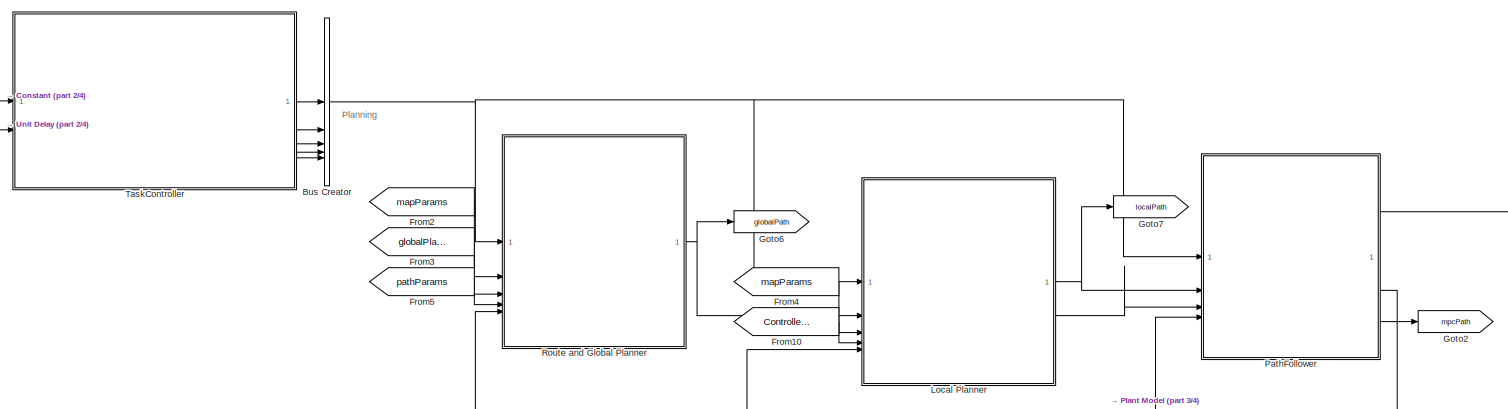
[diagram: root canvas - part 1/4, full width, top band]
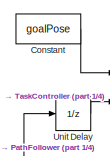
[diagram: root canvas - part 2/4, top left region]
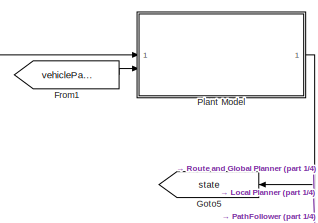
[diagram: root canvas - part 3/4, middle right region]
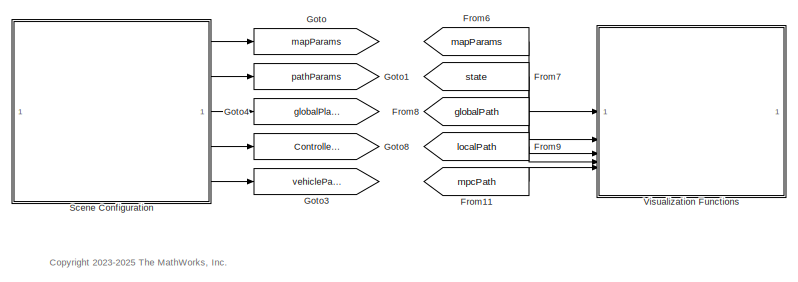
[diagram: root canvas - part 4/4, bottom center region]
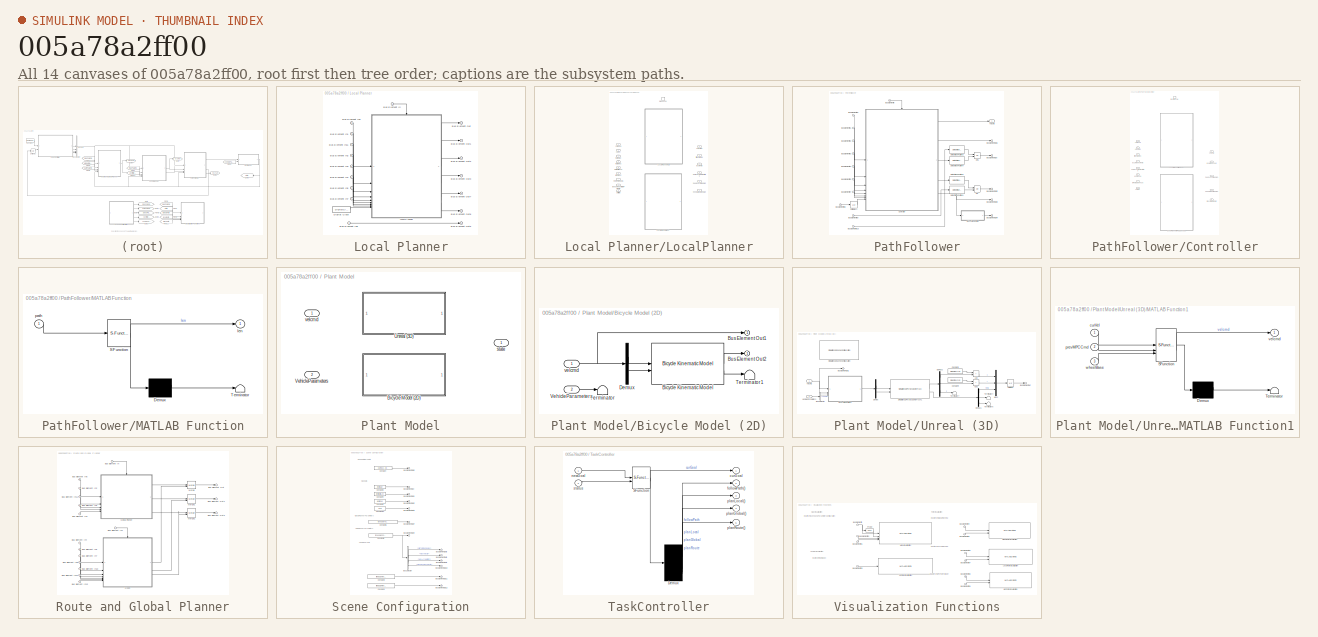
[diagram: thumbnail index - all 14 canvases of the model, root first then tree order]
MODEL slx_005a78a2ff00
KIND model
CONFIG AbsTol = auto
CONFIG EnableMultiTasking = off
CONFIG FixedStep = auto
CONFIG MaxStep = auto
CONFIG MinStep = auto
CONFIG RelTol = 1e-3
CONFIG SampleTimeConstraint = Unconstrained
CONFIG SolverName = VariableStepAuto
CONFIG StartFcn = clf\nrng(1,"twister");\n
CONFIG StartTime = 0.0
CONFIG StopTime = inf
BLOCK [BusCreator] Bus Creator
  DisplayOption = bar
  InheritFromInputs = on
  Inputs = 5
BLOCK [Constant] Constant
  Value = goalPose
BLOCK [From] From1
  GotoTag = vehicleParams
BLOCK [From] From10
  GotoTag = ControllerParams
BLOCK [From] From11
  GotoTag = mpcPath
BLOCK [From] From2
  GotoTag = mapParams
BLOCK [From] From3
  GotoTag = globalPlannerParams
BLOCK [From] From4
  GotoTag = mapParams
BLOCK [From] From5
  GotoTag = pathParams
BLOCK [From] From6
  GotoTag = mapParams
BLOCK [From] From7
  GotoTag = state
BLOCK [From] From8
  GotoTag = globalPath
BLOCK [From] From9
  GotoTag = localPath
BLOCK [Goto] Goto
  GotoTag = mapParams
BLOCK [Goto] Goto1
  GotoTag = pathParams
BLOCK [Goto] Goto2
  GotoTag = mpcPath
BLOCK [Goto] Goto3
  GotoTag = vehicleParams
BLOCK [Goto] Goto4
  GotoTag = globalPlannerParams
BLOCK [Goto] Goto5
  GotoTag = state
  NameLocation = top
BLOCK [Goto] Goto6
  GotoTag = globalPath
BLOCK [Goto] Goto7
  GotoTag = localPath
BLOCK [Goto] Goto8
  GotoTag = ControllerParams
BLOCK [SubSystem] Local Planner
BLOCK [Inport] Local Planner/Bus Element In
BLOCK [Inport] Local Planner/Bus Element In1
  Port = 5
BLOCK [Inport] Local Planner/Bus Element In11
  Port = 3
BLOCK [Inport] Local Planner/Bus Element In2
  Port = 3
BLOCK [Inport] Local Planner/Bus Element In3
  Port = 3
BLOCK [Inport] Local Planner/Bus Element In4
  Port = 2
BLOCK [Inport] Local Planner/Bus Element In5
  Port = 2
BLOCK [Inport] Local Planner/Bus Element In6
  Port = 5
BLOCK [Inport] Local Planner/Bus Element In7
  Port = 4
BLOCK [Inport] Local Planner/Bus Element In8
  Port = 2
BLOCK [Outport] Local Planner/Bus Element Out
BLOCK [Outport] Local Planner/Bus Element Out1
BLOCK [Outport] Local Planner/Bus Element Out2
BLOCK [Outport] Local Planner/Bus Element Out3
BLOCK [Outport] Local Planner/Bus Element Out6
BLOCK [Outport] Local Planner/Bus Element Out7
  Port = 2
BLOCK [Outport] Local Planner/Bus Element Out8
  Port = 2
BLOCK [DigitalClock] Local Planner/Digital Clock
  SampleTime = nlobjTracking.Ts
BLOCK [SubSystem] Local Planner/LocalPlanner
  LabelModeActiveChoice = LocalPlannerMPPI
  Variant = on
  VariantControl = LocalPlanner
  VariantControlMode = label
BLOCK [ModelReference] Local Planner/LocalPlanner/LocalPlannerMPPI
  ModelNameDialog = planLocalPathMPPI.slx
  ModelReferenceVersion = 3.32
  TriggerPortName = planLocal
  TriggerPortStatesWhenEnabling = held
  TriggerPortTriggerType = function-call
  VariantControl = LocalPlannerMPPI
BLOCK [ModelReference] Local Planner/LocalPlanner/LocalPlannerTEB
  ModelNameDialog = LocalPlannerTEB.slx
  ModelReferenceVersion = 3.25
  TriggerPortName = planLocal
  TriggerPortStatesWhenEnabling = held
  TriggerPortTriggerType = function-call
  VariantControl = LocalPlannerTEB
BLOCK [Inport] Local Planner/LocalPlanner/curpose
BLOCK [Inport] Local Planner/LocalPlanner/curvel
  Port = 2
BLOCK [Outport] Local Planner/LocalPlanner/localPath
  Port = 3
BLOCK [Inport] Local Planner/LocalPlanner/nRefPathRows
  Port = 7
BLOCK [Outport] Local Planner/LocalPlanner/needGlobalReplan
  OutDataTypeStr = boolean
  Port = 6
BLOCK [Outport] Local Planner/LocalPlanner/needLocalReplan
  OutDataTypeStr = boolean
  Port = 5
BLOCK [Outport] Local Planner/LocalPlanner/numLocalPathStates
  Port = 4
BLOCK [TriggerPort] Local Planner/LocalPlanner/planLocal
  TriggerType = function-call
  VariantControl = (inherit)
BLOCK [Inport] Local Planner/LocalPlanner/refPathXY
  Port = 6
BLOCK [Inport] Local Planner/LocalPlanner/simtime
  Port = 9
BLOCK [Outport] Local Planner/LocalPlanner/timestamps
  Port = 2
BLOCK [Inport] Local Planner/LocalPlanner/tuneableControllerParams
  Port = 8
BLOCK [Outport] Local Planner/LocalPlanner/velcmds
BLOCK [Inport] Local Planner/LocalPlanner/worldGridLoc
  Port = 5
BLOCK [Inport] Local Planner/LocalPlanner/worldMat
  Port = 3
BLOCK [Inport] Local Planner/LocalPlanner/worldRes
  Port = 4
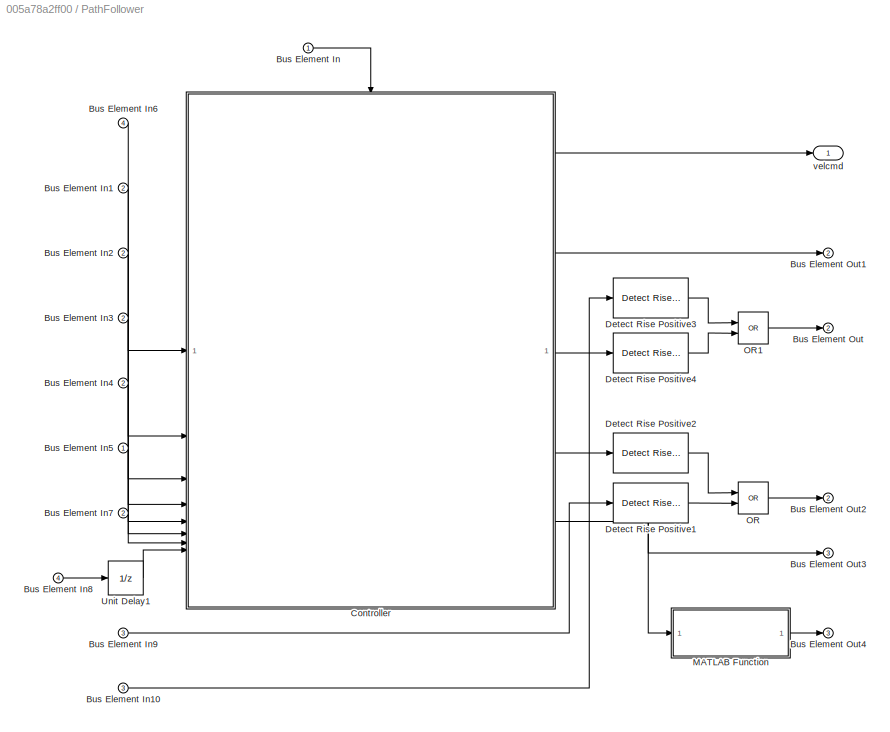
BLOCK [SubSystem] PathFollower
BLOCK [Inport] PathFollower/Bus Element In
BLOCK [Inport] PathFollower/Bus Element In1
  Port = 2
BLOCK [Inport] PathFollower/Bus Element In10
  Port = 3
BLOCK [Inport] PathFollower/Bus Element In2
  Port = 2
BLOCK [Inport] PathFollower/Bus Element In3
  Port = 2
BLOCK [Inport] PathFollower/Bus Element In4
  Port = 2
BLOCK [Inport] PathFollower/Bus Element In5
BLOCK [Inport] PathFollower/Bus Element In6
  Port = 4
BLOCK [Inport] PathFollower/Bus Element In7
  Port = 2
BLOCK [Inport] PathFollower/Bus Element In8
  Port = 4
BLOCK [Inport] PathFollower/Bus Element In9
  Port = 3
BLOCK [Outport] PathFollower/Bus Element Out
  Port = 2
BLOCK [Outport] PathFollower/Bus Element Out1
  Port = 2
BLOCK [Outport] PathFollower/Bus Element Out2
  Port = 2
BLOCK [Outport] PathFollower/Bus Element Out3
  Port = 3
BLOCK [Outport] PathFollower/Bus Element Out4
  Port = 3
BLOCK [SubSystem] PathFollower/Controller
  LabelModeActiveChoice = Local Planner MPC Cascade
  Variant = on
  VariantControl = Controller
  VariantControlMode = label
BLOCK [ModelReference] PathFollower/Controller/LocalPlannerIndexer
  ModelNameDialog = LocalPlannerIndexer
  ModelReferenceVersion = 3.64
  TriggerPortName = function call
  TriggerPortStatesWhenEnabling = held
  TriggerPortTriggerType = function-call
  VariantControl = Local Planner Indexer
BLOCK [ModelReference] PathFollower/Controller/LocalPlannerMPCCascade
  ModelNameDialog = LocalPlannerMPCCascade
  ModelReferenceVersion = 3.32
  TriggerPortName = function call
  TriggerPortStatesWhenEnabling = held
  TriggerPortTriggerType = function-call
  VariantControl = Local Planner MPC Cascade
BLOCK [Inport] PathFollower/Controller/curPose
BLOCK [Inport] PathFollower/Controller/curVel
  Port = 8
BLOCK [TriggerPort] PathFollower/Controller/function call
  PortDimensions = 1
  StatesWhenEnabling = held
  TriggerType = function-call
  VariantControl = (inherit)
BLOCK [Inport] PathFollower/Controller/goalPose
  Port = 6
BLOCK [Outport] PathFollower/Controller/goalReached
  Port = 2
BLOCK [Inport] PathFollower/Controller/localPlannerPath
  Port = 4
BLOCK [Outport] PathFollower/Controller/mpcOutputPath
  Port = 5
BLOCK [Outport] PathFollower/Controller/needGlobalReplan
  Port = 4
BLOCK [Outport] PathFollower/Controller/needLocalReplan
  Port = 3
BLOCK [Inport] PathFollower/Controller/numLocalPathStates
  Port = 5
BLOCK [Inport] PathFollower/Controller/refPathEndPose
  Port = 7
BLOCK [Inport] PathFollower/Controller/timestamps
  Port = 3
BLOCK [Outport] PathFollower/Controller/velcmd
BLOCK [Inport] PathFollower/Controller/velcmds
  Port = 2
BLOCK [Reference] PathFollower/Detect Rise Positive1  REF=simulink/Logic and Bit
Operations/Detect Rise
Positive
  SourceBlock = simulink/Logic and Bit\nOperations/Detect Rise\nPositive
  SourceType = Detect Rise Positive
BLOCK [Reference] PathFollower/Detect Rise Positive2  REF=simulink/Logic and Bit
Operations/Detect Rise
Positive
  SourceBlock = simulink/Logic and Bit\nOperations/Detect Rise\nPositive
  SourceType = Detect Rise Positive
BLOCK [Reference] PathFollower/Detect Rise Positive3  REF=simulink/Logic and Bit
Operations/Detect Rise
Positive
  SourceBlock = simulink/Logic and Bit\nOperations/Detect Rise\nPositive
  SourceType = Detect Rise Positive
BLOCK [Reference] PathFollower/Detect Rise Positive4  REF=simulink/Logic and Bit
Operations/Detect Rise
Positive
  SourceBlock = simulink/Logic and Bit\nOperations/Detect Rise\nPositive
  SourceType = Detect Rise Positive
BLOCK [SubSystem] PathFollower/MATLAB Function
  ErrorFcn = Stateflow.Translate.translate
  PermitHierarchicalResolution = ExplicitOnly
  SFBlockType = MATLAB Function
  TreatAsAtomicUnit = on
BLOCK [Demux] PathFollower/MATLAB Function/ Demux 
  Outputs = 1
BLOCK [S-Function] PathFollower/MATLAB Function/ SFunction 
  EnableBusSupport = off
  FunctionName = sf_sfun
  PortCounts = [1 2]
  SFcnIsStateOwnerBlock = off
  SFunctionDeploymentMode = off
  Tag = Stateflow S-Function 5
BLOCK [Terminator] PathFollower/MATLAB Function/ Terminator 
BLOCK [Outport] PathFollower/MATLAB Function/len
BLOCK [Inport] PathFollower/MATLAB Function/path
BLOCK [Logic] PathFollower/OR
  AllPortsSameDT = off
  IconShape = distinctive
  Operator = OR
  OutDataTypeStr = boolean
BLOCK [Logic] PathFollower/OR1
  AllPortsSameDT = off
  IconShape = distinctive
  Operator = OR
  OutDataTypeStr = boolean
BLOCK [UnitDelay] PathFollower/Unit Delay1
  HasFrameUpgradeWarning = on
  SampleTime = -1
BLOCK [Outport] PathFollower/velcmd
BLOCK [SubSystem] Plant Model
  Variant = on
  VariantControl = Environemnt
BLOCK [SubSystem] Plant Model/Bicycle Model (2D)
  VariantControl = vssPhysModel == "Simple"
BLOCK [Reference] Plant Model/Bicycle Model (2D)/Bicycle Kinematic Model  REF=robotmobilelib/Bicycle Kinematic Model
  SourceBlock = robotmobilelib/Bicycle Kinematic Model
  SourceType = Bicycle Kinematic Model
BLOCK [Outport] Plant Model/Bicycle Model (2D)/Bus Element Out1
BLOCK [Outport] Plant Model/Bicycle Model (2D)/Bus Element Out2
BLOCK [Demux] Plant Model/Bicycle Model (2D)/Demux
  Outputs = 2
BLOCK [Terminator] Plant Model/Bicycle Model (2D)/Terminator
BLOCK [Terminator] Plant Model/Bicycle Model (2D)/Terminator1
BLOCK [Inport] Plant Model/Bicycle Model (2D)/VehicleParameters
  Port = 2
BLOCK [Inport] Plant Model/Bicycle Model (2D)/velcmd
BLOCK [SubSystem] Plant Model/Unreal (3D)
  VariantControl = vssPhysModel == "Unreal"
BLOCK [Sum] Plant Model/Unreal (3D)/Add
  IconShape = rectangular
BLOCK [Sum] Plant Model/Unreal (3D)/Add1
  IconShape = rectangular
BLOCK [Outport] Plant Model/Unreal (3D)/Bus Element Out
BLOCK [Outport] Plant Model/Unreal (3D)/Bus Element Out1
BLOCK [BusSelector] Plant Model/Unreal (3D)/Bus Selector
  OutputSignals = Length
BLOCK [Constant] Plant Model/Unreal (3D)/Constant1
  Value = mapSize(1)/2
  VectorParams1D = off
BLOCK [Constant] Plant Model/Unreal (3D)/Constant4
  Value = mapSize(2)/2
  VectorParams1D = off
BLOCK [Demux] Plant Model/Unreal (3D)/Demux
  Outputs = 2
BLOCK [Demux] Plant Model/Unreal (3D)/Demux1
  Outputs = 3
BLOCK [Demux] Plant Model/Unreal (3D)/Demux2
  Outputs = 3
BLOCK [SubSystem] Plant Model/Unreal (3D)/MATLAB Function1
  ErrorFcn = Stateflow.Translate.translate
  PermitHierarchicalResolution = ExplicitOnly
  SFBlockType = MATLAB Function
  TreatAsAtomicUnit = on
BLOCK [Demux] Plant Model/Unreal (3D)/MATLAB Function1/ Demux 
  Outputs = 1
BLOCK [S-Function] Plant Model/Unreal (3D)/MATLAB Function1/ SFunction 
  EnableBusSupport = off
  FunctionName = sf_sfun
  PortCounts = [3 2]
  SFcnIsStateOwnerBlock = off
  SFunctionDeploymentMode = off
  Tag = Stateflow S-Function 4
BLOCK [Terminator] Plant Model/Unreal (3D)/MATLAB Function1/ Terminator 
BLOCK [Inport] Plant Model/Unreal (3D)/MATLAB Function1/curVel
BLOCK [Inport] Plant Model/Unreal (3D)/MATLAB Function1/prevMPCCmd
  Port = 2
BLOCK [Outport] Plant Model/Unreal (3D)/MATLAB Function1/velcmd
BLOCK [Inport] Plant Model/Unreal (3D)/MATLAB Function1/wheelBase
  Port = 3
BLOCK [Mux] Plant Model/Unreal (3D)/Mux2
  DisplayOption = bar
  Inputs = 3
BLOCK [Reference] Plant Model/Unreal (3D)/Simulation 3D Physics Dump Truck1  REF=offroadsim3dlib/Simulation 3D Physics Dump Truck
  SourceBlock = offroadsim3dlib/Simulation 3D Physics Dump Truck
  SourceType = Simulation 3D Physics Dump Truck
BLOCK [Reference] Plant Model/Unreal (3D)/Simulation 3D Scene Configuration  REF=sim3dlib/Simulation 3D Scene Configuration
  LibrarySourceBlock = robotsim3dlib/Simulation 3D Scene Configuration
  Priority = 0
  SourceBlock = sim3dlib/Simulation 3D Scene Configuration
  SourceType = Simulation 3D Scene Configuration
BLOCK [Terminator] Plant Model/Unreal (3D)/Terminator4
BLOCK [Terminator] Plant Model/Unreal (3D)/Terminator6
BLOCK [Terminator] Plant Model/Unreal (3D)/Terminator7
BLOCK [UnitDelay] Plant Model/Unreal (3D)/Unit Delay
  HasFrameUpgradeWarning = on
  InitialCondition = startPose
  SampleTime = -1
BLOCK [Inport] Plant Model/Unreal (3D)/VehicleParameters
  Port = 2
BLOCK [Inport] Plant Model/Unreal (3D)/velcmd
  PortDimensions = [1 2]
BLOCK [Inport] Plant Model/VehicleParameters
  Port = 2
BLOCK [Outport] Plant Model/state
BLOCK [Inport] Plant Model/velcmd
BLOCK [SubSystem] Route and Global Planner
BLOCK [Inport] Route and Global Planner/Bus Element In
BLOCK [Inport] Route and Global Planner/Bus Element In1
BLOCK [Inport] Route and Global Planner/Bus Element In10
  Port = 2
BLOCK [Inport] Route and Global Planner/Bus Element In11
  Port = 2
BLOCK [Inport] Route and Global Planner/Bus Element In12
  Port = 2
BLOCK [Inport] Route and Global Planner/Bus Element In13
  Port = 3
BLOCK [Inport] Route and Global Planner/Bus Element In2
BLOCK [Inport] Route and Global Planner/Bus Element In3
  Port = 3
BLOCK [Inport] Route and Global Planner/Bus Element In4
  Port = 4
BLOCK [Inport] Route and Global Planner/Bus Element In5
  Port = 5
BLOCK [Inport] Route and Global Planner/Bus Element In6
  Port = 5
BLOCK [Inport] Route and Global Planner/Bus Element In7
BLOCK [Inport] Route and Global Planner/Bus Element In8
  Port = 2
BLOCK [Inport] Route and Global Planner/Bus Element In9
  Port = 2
BLOCK [Outport] Route and Global Planner/Bus Element Out
BLOCK [Outport] Route and Global Planner/Bus Element Out1
BLOCK [Outport] Route and Global Planner/Bus Element Out2
BLOCK [ModelReference] Route and Global Planner/Global Planner
  ModelNameDialog = TerrainAwarePlanner.slx
  ModelReferenceVersion = 2.3
  TriggerPortName = Trigger
  TriggerPortStatesWhenEnabling = held
  TriggerPortTriggerType = function-call
BLOCK [Merge] Route and Global Planner/Merge
BLOCK [Merge] Route and Global Planner/Merge1
BLOCK [Merge] Route and Global Planner/Merge2
BLOCK [ModelReference] Route and Global Planner/Model
  ModelNameDialog = RoutePlanner.slx
  ModelReferenceVersion = 3.2
  TriggerPortName = Trigger
  TriggerPortStatesWhenEnabling = held
  TriggerPortTriggerType = function-call
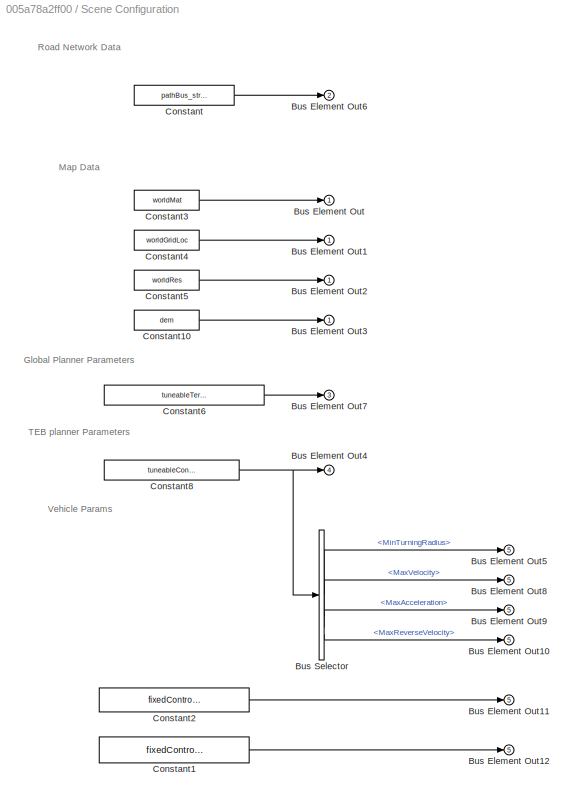
BLOCK [SubSystem] Scene Configuration
BLOCK [Outport] Scene Configuration/Bus Element Out
BLOCK [Outport] Scene Configuration/Bus Element Out1
BLOCK [Outport] Scene Configuration/Bus Element Out10
  Port = 5
BLOCK [Outport] Scene Configuration/Bus Element Out11
  Port = 5
BLOCK [Outport] Scene Configuration/Bus Element Out12
  Port = 5
BLOCK [Outport] Scene Configuration/Bus Element Out2
BLOCK [Outport] Scene Configuration/Bus Element Out3
BLOCK [Outport] Scene Configuration/Bus Element Out4
  Port = 4
BLOCK [Outport] Scene Configuration/Bus Element Out5
  Port = 5
BLOCK [Outport] Scene Configuration/Bus Element Out6
  Port = 2
BLOCK [Outport] Scene Configuration/Bus Element Out7
  Port = 3
BLOCK [Outport] Scene Configuration/Bus Element Out8
  Port = 5
BLOCK [Outport] Scene Configuration/Bus Element Out9
  Port = 5
BLOCK [BusSelector] Scene Configuration/Bus Selector
  OutputSignals = MinTurningRadius,MaxVelocity,MaxAcceleration,MaxReverseVelocity
BLOCK [Constant] Scene Configuration/Constant
  OutDataTypeStr = Bus: pathList_fixed_bus
  Value = pathBus_struct
BLOCK [Constant] Scene Configuration/Constant1
  Value = fixedControllerParams.Width
  VectorParams1D = off
BLOCK [Constant] Scene Configuration/Constant10
  Value = dem
BLOCK [Constant] Scene Configuration/Constant2
  Value = fixedControllerParams.Length
  VectorParams1D = off
BLOCK [Constant] Scene Configuration/Constant3
  Value = worldMat
BLOCK [Constant] Scene Configuration/Constant4
  Value = worldGridLoc
BLOCK [Constant] Scene Configuration/Constant5
  Value = worldRes
BLOCK [Constant] Scene Configuration/Constant6
  OutDataTypeStr = Bus: fsp_tunable_bus
  Value = tuneableTerrainAwareParams
BLOCK [Constant] Scene Configuration/Constant8
  OutDataTypeStr = Bus:controller_bus
  Value = tuneableControllerParamsCpp
BLOCK [SubSystem] TaskController
  ErrorFcn = Stateflow.Translate.translate
  PermitHierarchicalResolution = ExplicitOnly
  PortSchema = {"entries":[{"content":{"sides":[{"content":{"connectorIds":["In1","In2"]},"type":"ConnectorPlacement.EquallySpacedRectSide","uuid":"cbfa7659-89a5-4e0b-94c8-c3ff629b6c07"},{"content":{"connectorIds":["Out2","Out3","Out4","Out5","Out1"],"side":"RIGHT"},"type":"ConnectorPlacement.EquallySpacedRectSide","uuid":"09a77d14-4924-404f-bc0a-d1cd3933e1ef"},{"content":{"side":"TOP"},"type":"ConnectorPlacemen...<+382ch>
  SFBlockType = Chart
  TreatAsAtomicUnit = on
BLOCK [Demux] TaskController/ Demux 
BLOCK [S-Function] TaskController/ SFunction 
  EnableBusSupport = off
  FunctionName = sf_sfun
  PortCounts = [2 2]
  SFcnIsStateOwnerBlock = off
  SFunctionDeploymentMode = off
  Tag = Stateflow S-Function 3
BLOCK [Outport] TaskController/curGoal
BLOCK [Outport] TaskController/followPath()
  Port = 2
BLOCK [Inport] TaskController/newGoal
BLOCK [Outport] TaskController/planGlobal()
  Port = 4
BLOCK [Outport] TaskController/planLocal()
  Port = 3
BLOCK [Outport] TaskController/planRoute()
  Port = 5
BLOCK [Inport] TaskController/status
  Port = 2
BLOCK [UnitDelay] Unit Delay
  HasFrameUpgradeWarning = on
  SampleTime = -1
BLOCK [SubSystem] Visualization Functions
BLOCK [Inport] Visualization Functions/Bus Element In
BLOCK [Inport] Visualization Functions/Bus Element In1
BLOCK [Inport] Visualization Functions/Bus Element In2
BLOCK [Inport] Visualization Functions/Bus Element In3
  Port = 2
BLOCK [Inport] Visualization Functions/Bus Element In4
  Port = 3
BLOCK [Inport] Visualization Functions/Bus Element In5
  Port = 3
BLOCK [Inport] Visualization Functions/Bus Element In6
  Port = 4
BLOCK [Inport] Visualization Functions/Bus Element In7
  Port = 4
BLOCK [Inport] Visualization Functions/Bus Element In8
  Port = 5
BLOCK [Inport] Visualization Functions/Bus Element In9
  Port = 5
BLOCK [Reference] Visualization Functions/Global Path Vizualization  REF=roshelperlib/MATLAB System2  (lib defined in slx_3328ea0e13a5)
  SourceBlock = roshelperlib/MATLAB System2
  SourceType = exampleHelperPathVisualizerSys
BLOCK [Reference] Visualization Functions/Local Path Vizualization  REF=roshelperlib/MATLAB System2  (lib defined in slx_3328ea0e13a5)
  SourceBlock = roshelperlib/MATLAB System2
  SourceType = exampleHelperPathVisualizerSys
BLOCK [Reference] Visualization Functions/MPC Path Vizualization  REF=roshelperlib/MATLAB System2  (lib defined in slx_3328ea0e13a5)
  SourceBlock = roshelperlib/MATLAB System2
  SourceType = exampleHelperPathVisualizerSys
BLOCK [Reference] Visualization Functions/Map Visualization  REF=roshelperlib/MATLAB System1  (lib defined in slx_3328ea0e13a5)
  SourceBlock = roshelperlib/MATLAB System1
  SourceType = exampleHelperMapVisualizerSys
BLOCK [Probe] Visualization Functions/Probe
  ProbeComplexSignal = off
  ProbeSampleTime = off
  ProbeSignalDimensions = on
  ProbeWidth = off
BLOCK [Reference] Visualization Functions/Vehicle Visualization  REF=roshelperlib/MATLAB System3  (lib defined in slx_3328ea0e13a5)
  SourceBlock = roshelperlib/MATLAB System3
  SourceType = exampleHelperVehicleVisualizerSys
ANNOTATION (root): <copyright redacted>
ANNOTATION (root): Planning
ANNOTATION Scene Configuration: Global Planner Parameters
ANNOTATION Scene Configuration: Map Data
ANNOTATION Scene Configuration: Road Network Data
ANNOTATION Scene Configuration: TEB planner Parameters
ANNOTATION Scene Configuration: Vehicle Params
ANNOTATION Visualization Functions: Input from Plant Model
ANNOTATION Visualization Functions: Input from Scene and Parameter Configuration
ANNOTATION Visualization Functions: Inputs from Global Planning
ANNOTATION Visualization Functions: Inputs from Local Planning
ANNOTATION Visualization Functions: Inputs from MPC Path Follower
ANNOTATION Visualization Functions: Map Visualization
ANNOTATION Visualization Functions: Path Visualization
ANNOTATION Visualization Functions: Vehicle Visualization
NET Bus Creator:1 -> Local Planner:1, PathFollower:1, Route and Global Planner:1
LINE Constant:1 -> TaskController:1
LINE From10:1 -> Local Planner:4
LINE From11:1 -> Visualization Functions:5
LINE From1:1 -> Plant Model:2
LINE From2:1 -> Route and Global Planner:2
LINE From3:1 -> Route and Global Planner:3
LINE From4:1 -> Local Planner:3
LINE From5:1 -> Route and Global Planner:4
LINE From6:1 -> Visualization Functions:1
LINE From7:1 -> Visualization Functions:2
LINE From8:1 -> Visualization Functions:3
LINE From9:1 -> Visualization Functions:4
LINE Local Planner/Bus Element In11:1 -> Local Planner/LocalPlanner:3
LINE Local Planner/Bus Element In1:1 -> Local Planner/LocalPlanner:2
LINE Local Planner/Bus Element In2:1 -> Local Planner/LocalPlanner:4
LINE Local Planner/Bus Element In3:1 -> Local Planner/LocalPlanner:5
LINE Local Planner/Bus Element In4:1 -> Local Planner/LocalPlanner:6
LINE Local Planner/Bus Element In5:1 -> Local Planner/LocalPlanner:7
LINE Local Planner/Bus Element In6:1 -> Local Planner/LocalPlanner:1
LINE Local Planner/Bus Element In7:1 -> Local Planner/LocalPlanner:8
LINE Local Planner/Bus Element In8:1 -> Local Planner/Bus Element Out6:1
LINE Local Planner/Bus Element In:1 -> Local Planner/LocalPlanner:trigger
LINE Local Planner/Digital Clock:1 -> Local Planner/LocalPlanner:9
LINE Local Planner/LocalPlanner:1 -> Local Planner/Bus Element Out:1
LINE Local Planner/LocalPlanner:2 -> Local Planner/Bus Element Out1:1
LINE Local Planner/LocalPlanner:3 -> Local Planner/Bus Element Out2:1
LINE Local Planner/LocalPlanner:4 -> Local Planner/Bus Element Out3:1
LINE Local Planner/LocalPlanner:5 -> Local Planner/Bus Element Out7:1
LINE Local Planner/LocalPlanner:6 -> Local Planner/Bus Element Out8:1
NET Local Planner:1 -> Goto7:1, PathFollower:2
LINE Local Planner:2 -> PathFollower:3
LINE PathFollower/Bus Element In10:1 -> PathFollower/Detect Rise Positive3:1
LINE PathFollower/Bus Element In1:1 -> PathFollower/Controller:2
LINE PathFollower/Bus Element In2:1 -> PathFollower/Controller:3
LINE PathFollower/Bus Element In3:1 -> PathFollower/Controller:4
LINE PathFollower/Bus Element In4:1 -> PathFollower/Controller:5
LINE PathFollower/Bus Element In5:1 -> PathFollower/Controller:6
LINE PathFollower/Bus Element In6:1 -> PathFollower/Controller:1
LINE PathFollower/Bus Element In7:1 -> PathFollower/Controller:7
LINE PathFollower/Bus Element In8:1 -> PathFollower/Unit Delay1:1
LINE PathFollower/Bus Element In9:1 -> PathFollower/Detect Rise Positive1:1
LINE PathFollower/Bus Element In:1 -> PathFollower/Controller:trigger
LINE PathFollower/Controller:1 -> PathFollower/velcmd:1
LINE PathFollower/Controller:2 -> PathFollower/Bus Element Out1:1
LINE PathFollower/Controller:3 -> PathFollower/Detect Rise Positive4:1
LINE PathFollower/Controller:4 -> PathFollower/Detect Rise Positive2:1
NET PathFollower/Controller:5 -> PathFollower/Bus Element Out3:1, PathFollower/MATLAB Function:1
LINE PathFollower/Detect Rise Positive1:1 -> PathFollower/OR:2
LINE PathFollower/Detect Rise Positive2:1 -> PathFollower/OR:1
LINE PathFollower/Detect Rise Positive3:1 -> PathFollower/OR1:1
LINE PathFollower/Detect Rise Positive4:1 -> PathFollower/OR1:2
LINE PathFollower/MATLAB Function:1 -> PathFollower/Bus Element Out4:1
LINE PathFollower/OR1:1 -> PathFollower/Bus Element Out:1
LINE PathFollower/OR:1 -> PathFollower/Bus Element Out2:1
LINE PathFollower/Unit Delay1:1 -> PathFollower/Controller:8
LINE PathFollower:1 -> Plant Model:1
LINE PathFollower:2 -> Unit Delay:1
LINE PathFollower:3 -> Goto2:1
LINE Plant Model/Bicycle Model (2D)/Bicycle Kinematic Model:1 -> Plant Model/Bicycle Model (2D)/Bus Element Out2:1
LINE Plant Model/Bicycle Model (2D)/Bicycle Kinematic Model:2 -> Plant Model/Bicycle Model (2D)/Terminator1:1
LINE Plant Model/Bicycle Model (2D)/Demux:1 -> Plant Model/Bicycle Model (2D)/Bicycle Kinematic Model:1
LINE Plant Model/Bicycle Model (2D)/Demux:2 -> Plant Model/Bicycle Model (2D)/Bicycle Kinematic Model:2
LINE Plant Model/Bicycle Model (2D)/VehicleParameters:1 -> Plant Model/Bicycle Model (2D)/Terminator:1
NET Plant Model/Bicycle Model (2D)/velcmd:1 -> Plant Model/Bicycle Model (2D)/Bus Element Out1:1, Plant Model/Bicycle Model (2D)/Demux:1
LINE Plant Model/Unreal (3D)/Add1:1 -> Plant Model/Unreal (3D)/Mux2:2
LINE Plant Model/Unreal (3D)/Add:1 -> Plant Model/Unreal (3D)/Mux2:1
LINE Plant Model/Unreal (3D)/Bus Selector:1 -> Plant Model/Unreal (3D)/MATLAB Function1:3
LINE Plant Model/Unreal (3D)/Constant1:1 -> Plant Model/Unreal (3D)/Add:1
LINE Plant Model/Unreal (3D)/Constant4:1 -> Plant Model/Unreal (3D)/Add1:1
LINE Plant Model/Unreal (3D)/Demux1:1 -> Plant Model/Unreal (3D)/Mux2:3
LINE Plant Model/Unreal (3D)/Demux1:2 -> Plant Model/Unreal (3D)/Terminator4:1
LINE Plant Model/Unreal (3D)/Demux1:3 -> Plant Model/Unreal (3D)/Terminator6:1
LINE Plant Model/Unreal (3D)/Demux2:1 -> Plant Model/Unreal (3D)/Add:2
LINE Plant Model/Unreal (3D)/Demux2:2 -> Plant Model/Unreal (3D)/Add1:2
LINE Plant Model/Unreal (3D)/Demux2:3 -> Plant Model/Unreal (3D)/Terminator7:1
LINE Plant Model/Unreal (3D)/Demux:1 -> Plant Model/Unreal (3D)/Simulation 3D Physics Dump Truck1:1
LINE Plant Model/Unreal (3D)/Demux:2 -> Plant Model/Unreal (3D)/Simulation 3D Physics Dump Truck1:2
LINE Plant Model/Unreal (3D)/MATLAB Function1:1 -> Plant Model/Unreal (3D)/Demux:1
LINE Plant Model/Unreal (3D)/Mux2:1 -> Plant Model/Unreal (3D)/Unit Delay:1
LINE Plant Model/Unreal (3D)/Simulation 3D Physics Dump Truck1:1 -> Plant Model/Unreal (3D)/Demux2:1
LINE Plant Model/Unreal (3D)/Simulation 3D Physics Dump Truck1:2 -> Plant Model/Unreal (3D)/Demux1:1
LINE Plant Model/Unreal (3D)/Unit Delay:1 -> Plant Model/Unreal (3D)/Bus Element Out:1
LINE Plant Model/Unreal (3D)/VehicleParameters:1 -> Plant Model/Unreal (3D)/Bus Selector:1
NET Plant Model/Unreal (3D)/velcmd:1 -> Plant Model/Unreal (3D)/Bus Element Out1:1, Plant Model/Unreal (3D)/MATLAB Function1:1, Plant Model/Unreal (3D)/MATLAB Function1:2
NET Plant Model:1 -> Goto5:1, Local Planner:5, PathFollower:4, Route and Global Planner:5
LINE Route and Global Planner/Bus Element In10:1 -> Route and Global Planner/Model:5
LINE Route and Global Planner/Bus Element In11:1 -> Route and Global Planner/Global Planner:3
LINE Route and Global Planner/Bus Element In12:1 -> Route and Global Planner/Model:6
LINE Route and Global Planner/Bus Element In13:1 -> Route and Global Planner/Model:7
LINE Route and Global Planner/Bus Element In1:1 -> Route and Global Planner/Model:trigger
LINE Route and Global Planner/Bus Element In2:1 -> Route and Global Planner/Global Planner:2
LINE Route and Global Planner/Bus Element In3:1 -> Route and Global Planner/Global Planner:5
LINE Route and Global Planner/Bus Element In4:1 -> Route and Global Planner/Model:1
LINE Route and Global Planner/Bus Element In5:1 -> Route and Global Planner/Model:2
LINE Route and Global Planner/Bus Element In6:1 -> Route and Global Planner/Global Planner:1
LINE Route and Global Planner/Bus Element In7:1 -> Route and Global Planner/Model:3
LINE Route and Global Planner/Bus Element In8:1 -> Route and Global Planner/Model:4
LINE Route and Global Planner/Bus Element In9:1 -> Route and Global Planner/Global Planner:4
LINE Route and Global Planner/Bus Element In:1 -> Route and Global Planner/Global Planner:trigger
LINE Route and Global Planner/Global Planner:1 -> Route and Global Planner/Merge:1
LINE Route and Global Planner/Global Planner:2 -> Route and Global Planner/Merge1:1
LINE Route and Global Planner/Global Planner:3 -> Route and Global Planner/Merge2:1
LINE Route and Global Planner/Merge1:1 -> Route and Global Planner/Bus Element Out1:1
LINE Route and Global Planner/Merge2:1 -> Route and Global Planner/Bus Element Out2:1
LINE Route and Global Planner/Merge:1 -> Route and Global Planner/Bus Element Out:1
LINE Route and Global Planner/Model:1 -> Route and Global Planner/Merge:2
LINE Route and Global Planner/Model:2 -> Route and Global Planner/Merge1:2
LINE Route and Global Planner/Model:3 -> Route and Global Planner/Merge2:2
NET Route and Global Planner:1 -> Goto6:1, Local Planner:2
LINE Scene Configuration/Bus Selector:1 -> Scene Configuration/Bus Element Out5:1
LINE Scene Configuration/Bus Selector:2 -> Scene Configuration/Bus Element Out8:1
LINE Scene Configuration/Bus Selector:3 -> Scene Configuration/Bus Element Out9:1
LINE Scene Configuration/Bus Selector:4 -> Scene Configuration/Bus Element Out10:1
LINE Scene Configuration/Constant10:1 -> Scene Configuration/Bus Element Out3:1
LINE Scene Configuration/Constant1:1 -> Scene Configuration/Bus Element Out12:1
LINE Scene Configuration/Constant2:1 -> Scene Configuration/Bus Element Out11:1
LINE Scene Configuration/Constant3:1 -> Scene Configuration/Bus Element Out:1
LINE Scene Configuration/Constant4:1 -> Scene Configuration/Bus Element Out1:1
LINE Scene Configuration/Constant5:1 -> Scene Configuration/Bus Element Out2:1
LINE Scene Configuration/Constant6:1 -> Scene Configuration/Bus Element Out7:1
NET Scene Configuration/Constant8:1 -> Scene Configuration/Bus Element Out4:1, Scene Configuration/Bus Selector:1
LINE Scene Configuration/Constant:1 -> Scene Configuration/Bus Element Out6:1
LINE Scene Configuration:1 -> Goto:1
LINE Scene Configuration:2 -> Goto1:1
LINE Scene Configuration:3 -> Goto4:1
LINE Scene Configuration:4 -> Goto8:1
LINE Scene Configuration:5 -> Goto3:1
LINE TaskController:1 -> Bus Creator:5
LINE TaskController:2 -> Bus Creator:1
LINE TaskController:3 -> Bus Creator:2
LINE TaskController:4 -> Bus Creator:3
LINE TaskController:5 -> Bus Creator:4
LINE Unit Delay:1 -> TaskController:2
LINE Visualization Functions/Bus Element In1:1 -> Visualization Functions/Map Visualization:4
LINE Visualization Functions/Bus Element In2:1 -> Visualization Functions/Map Visualization:3
LINE Visualization Functions/Bus Element In3:1 -> Visualization Functions/Vehicle Visualization:1
LINE Visualization Functions/Bus Element In4:1 -> Visualization Functions/Global Path Vizualization:1
LINE Visualization Functions/Bus Element In5:1 -> Visualization Functions/Global Path Vizualization:2
LINE Visualization Functions/Bus Element In6:1 -> Visualization Functions/Local Path Vizualization:1
LINE Visualization Functions/Bus Element In7:1 -> Visualization Functions/Local Path Vizualization:2
LINE Visualization Functions/Bus Element In8:1 -> Visualization Functions/MPC Path Vizualization:1
LINE Visualization Functions/Bus Element In9:1 -> Visualization Functions/MPC Path Vizualization:2
NET Visualization Functions/Bus Element In:1 -> Visualization Functions/Map Visualization:1, Visualization Functions/Probe:1
LINE Visualization Functions/Probe:1 -> Visualization Functions/Map Visualization:2
note: NET lines group one-source signal fan-out (src -> all destinations, sorted); 1:1 wires keep LINE
CHART PathFollower/MATLAB Function states=1 transitions=1
  STATE_LABEL 'eML_blk_kernel()'
  STATE_LABEL 'SCRIPT:\nfunction len = findPathLength(path)\n\nlen = size(path,1);\n'
CHART TaskController states=6 transitions=11
  STATE_LABEL 'WaitingForTask'
  STATE_LABEL 'RoutePlanner\nentry:\n   curGoal = newGoal;\n   send(planRoute);\n'
  STATE_LABEL 'LocalPlanner\nentry:\nsend(planLocal);'
  STATE_LABEL 'FollowingPath\nentry, during:\nsend(followPath);'
  STATE_LABEL 'GlobalPlanner\nentry:\n   send(planGlobal);\n'
  STATE_LABEL '<!DOCTYPE HTML PUBLIC "-//W3C//DTD HTML 4.0//EN" "http://www.w3.org/TR/REC-html40/strict.dtd">\n<html><head><meta name="qrichtext" content="1" /><style type="text/css">\np, li { white-space: pre-wrap; }\n</style></head><body align="left" style=" font-family:\'Helvetica\'; font-size:12px; font-weight:400; font-style:normal;">\n<ol style="margin-top: 0px; margin-bottom: 0px; margin-left: 0px; margin-right...<+1907ch>'
CHART Plant Model/Unreal (3D)/MATLAB Function1 states=1 transitions=1
  STATE_LABEL 'eML_blk_kernel()'
  STATE_LABEL "SCRIPT:\nfunction velcmd = vel2mpc(curVel,prevMPCCmd,wheelBase)\nvelcmd = curVel;\nif velcmd(1) == 0\n    % Use previous steering angle when velocity is 0\n    velcmd(2) = prevMPCCmd(2);\nelse\n    % Otherwise compute it from turn-rate\n    velcmd(2) = atan(curVel(2)*wheelBase/velcmd(1));\nend\nvelcmd = velcmd(:)';\nvelcmd = flip(velcmd);\n"
CHART  states=0 transitions=0
CHART  states=0 transitions=0
CHART  states=0 transitions=0
